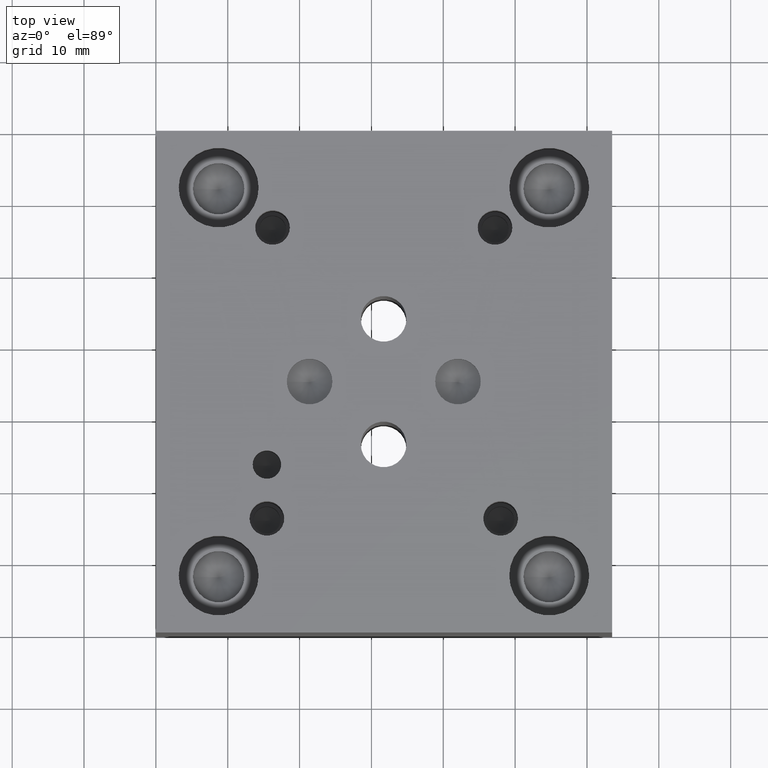
[diagram: clean part render]
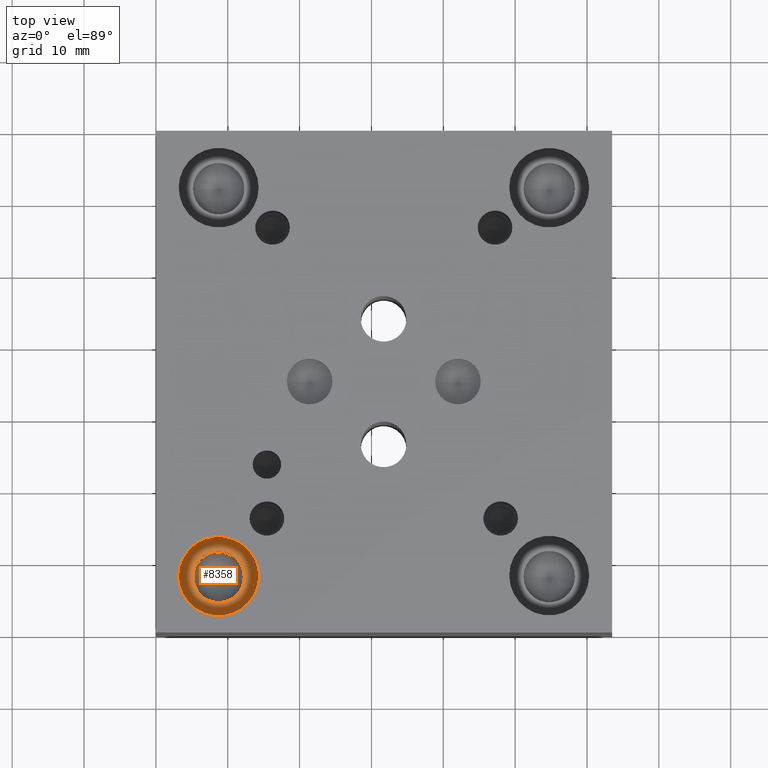
[diagram: same view with one face highlighted and labeled with its STEP entity id]
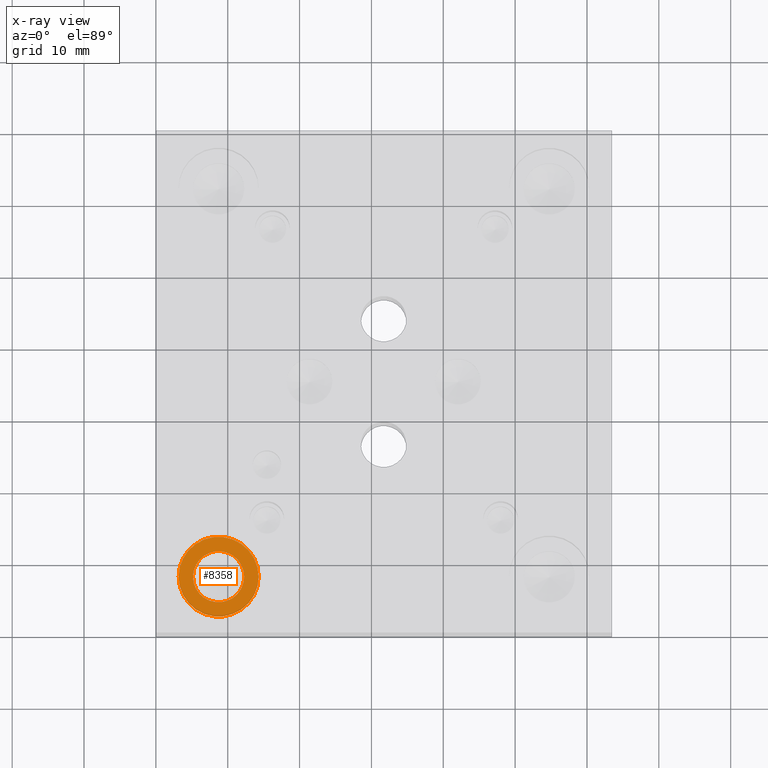
[diagram: x-ray of the same camera — body ghosted, the highlighted face saturated]
A machine part, top view. The second image highlights one B-rep face of the part: STEP entity #8358.
The next image is the same camera in x-ray: the body ghosted, the highlighted face saturated — about 0% of this face is hidden behind the body in this view.
In plain terms, the highlighted planar face has unit normal (0, 0, 1).
Its self-contained STEP definition (entity closure, byte-faithful):
#92=CIRCLE('',#8768,5.5626);
#93=CIRCLE('',#8769,5.5626);
#94=CIRCLE('',#8770,3.5687);
#499=FACE_BOUND('',#1379,.T.);
#913=FACE_OUTER_BOUND('',#1378,.T.);
#1378=EDGE_LOOP('',(#7119,#7120));
#1379=EDGE_LOOP('',(#7121));
#3842=VERTEX_POINT('',#13942);
#3843=VERTEX_POINT('',#13943);
#3844=VERTEX_POINT('',#13946);
#4963=EDGE_CURVE('',#3842,#3843,#92,.T.);
#4964=EDGE_CURVE('',#3843,#3842,#93,.T.);
#4965=EDGE_CURVE('',#3844,#3844,#94,.T.);
#7119=ORIENTED_EDGE('',*,*,#4963,.T.);
#7120=ORIENTED_EDGE('',*,*,#4964,.T.);
#7121=ORIENTED_EDGE('',*,*,#4965,.F.);
#7620=PLANE('',#8767);
#8358=ADVANCED_FACE('',(#913,#499),#7620,.T.);
#8767=AXIS2_PLACEMENT_3D('',#13941,#10386,#10387);
#8768=AXIS2_PLACEMENT_3D('',#13944,#10388,#10389);
#8769=AXIS2_PLACEMENT_3D('',#13945,#10390,#10391);
#8770=AXIS2_PLACEMENT_3D('',#13947,#10392,#10393);
#10386=DIRECTION('center_axis',(0.,0.,1.));
#10387=DIRECTION('ref_axis',(1.,0.,0.));
#10388=DIRECTION('center_axis',(0.,0.,1.));
#10389=DIRECTION('ref_axis',(1.,0.,0.));
#10390=DIRECTION('center_axis',(0.,0.,1.));
#10391=DIRECTION('ref_axis',(1.,0.,0.));
#10392=DIRECTION('center_axis',(0.,0.,1.));
#10393=DIRECTION('ref_axis',(1.,0.,0.));
#13941=CARTESIAN_POINT('Origin',(8.73125,7.9248,28.575));
#13942=CARTESIAN_POINT('',(14.29385,7.9248,28.575));
#13943=CARTESIAN_POINT('',(3.16865,7.9248,28.575));
#13944=CARTESIAN_POINT('Origin',(8.73125,7.9248,28.575));
#13945=CARTESIAN_POINT('Origin',(8.73125,7.9248,28.575));
#13946=CARTESIAN_POINT('',(5.16255,7.9248,28.575));
#13947=CARTESIAN_POINT('Origin',(8.73125,7.9248,28.575));